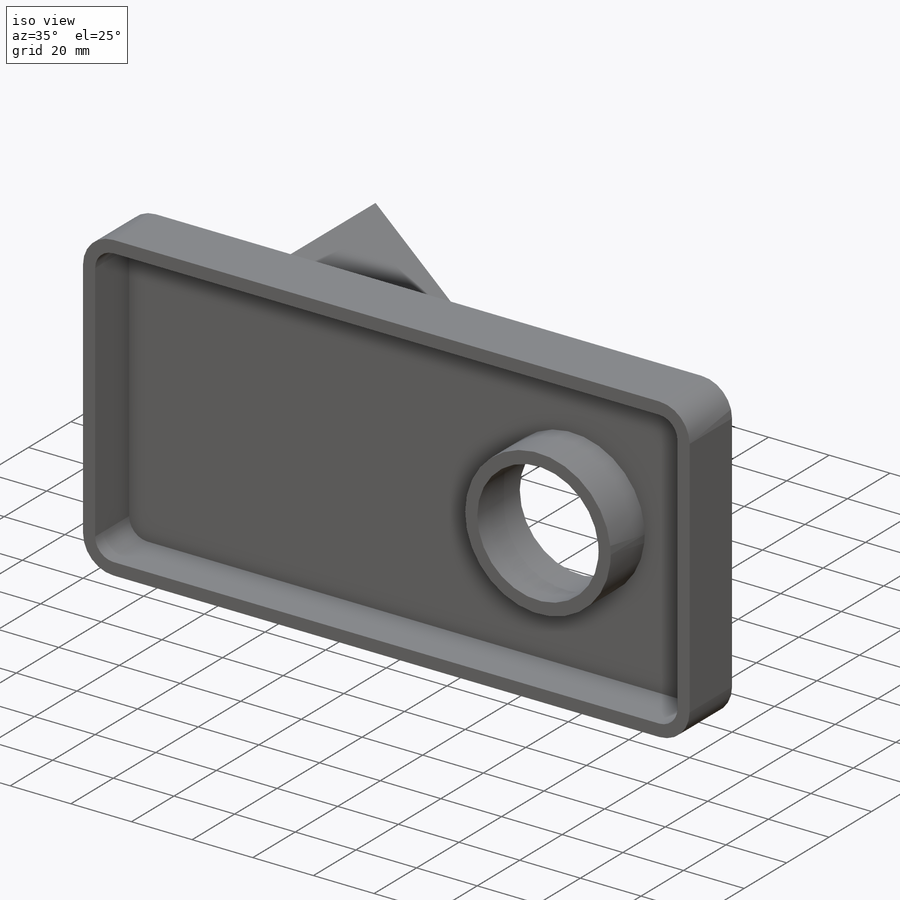
[diagram: iso view]
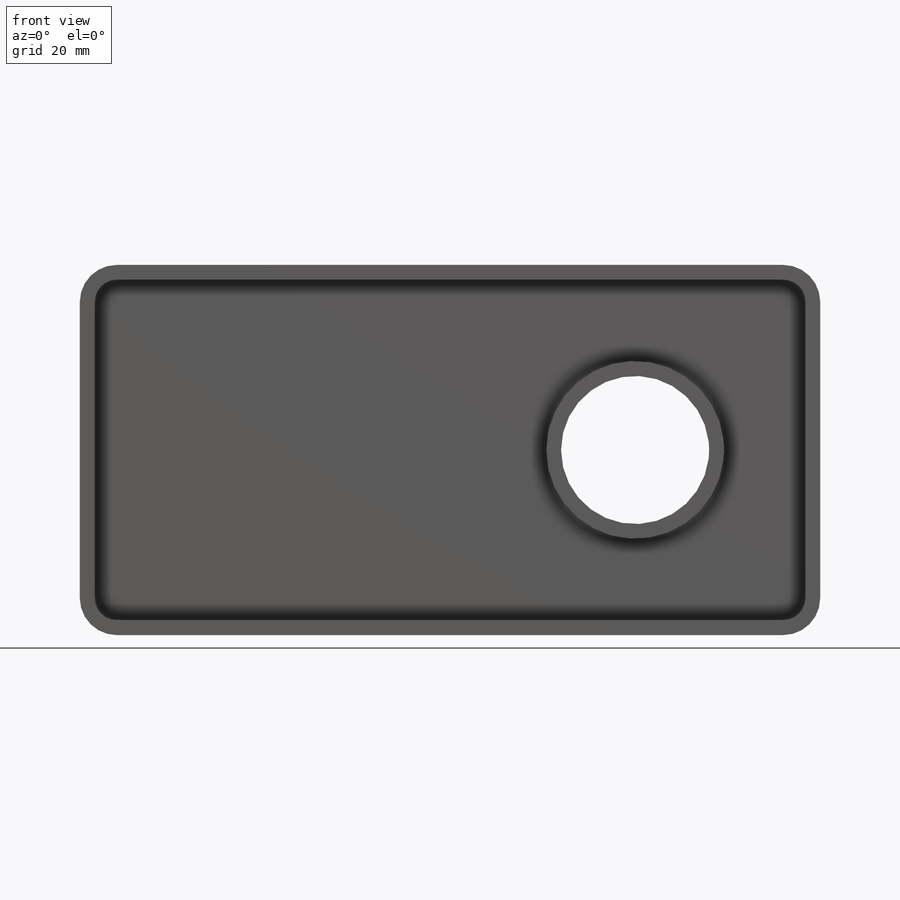
[diagram: front view]
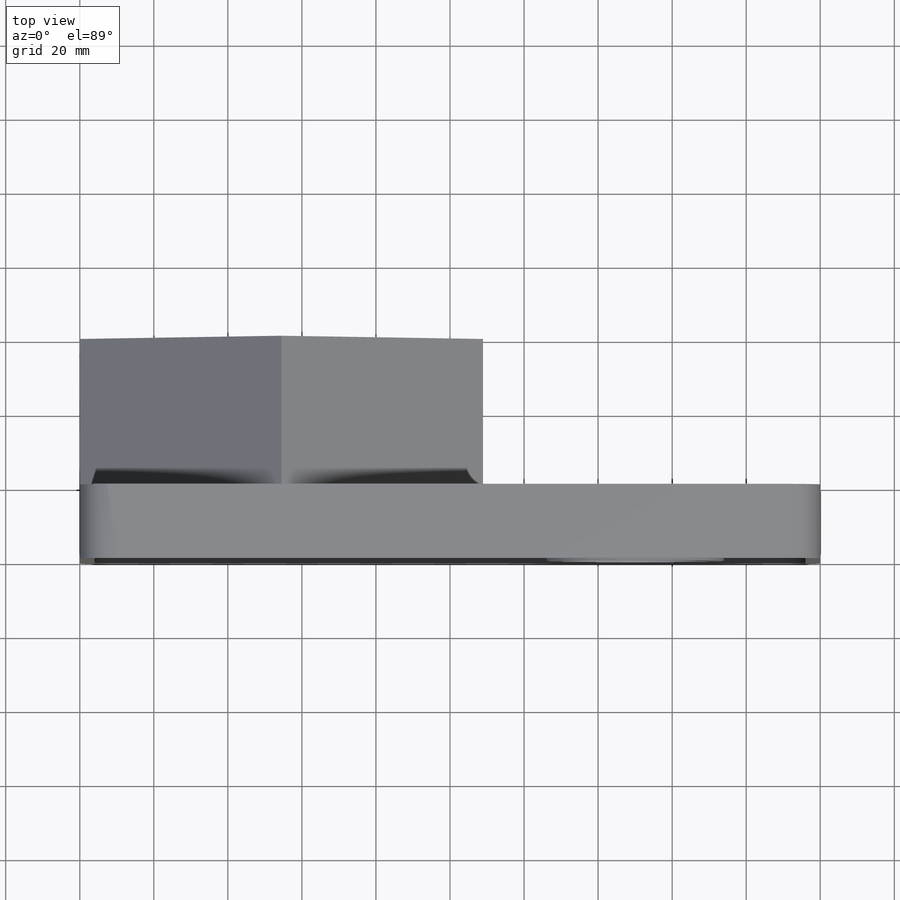
[diagram: top view]
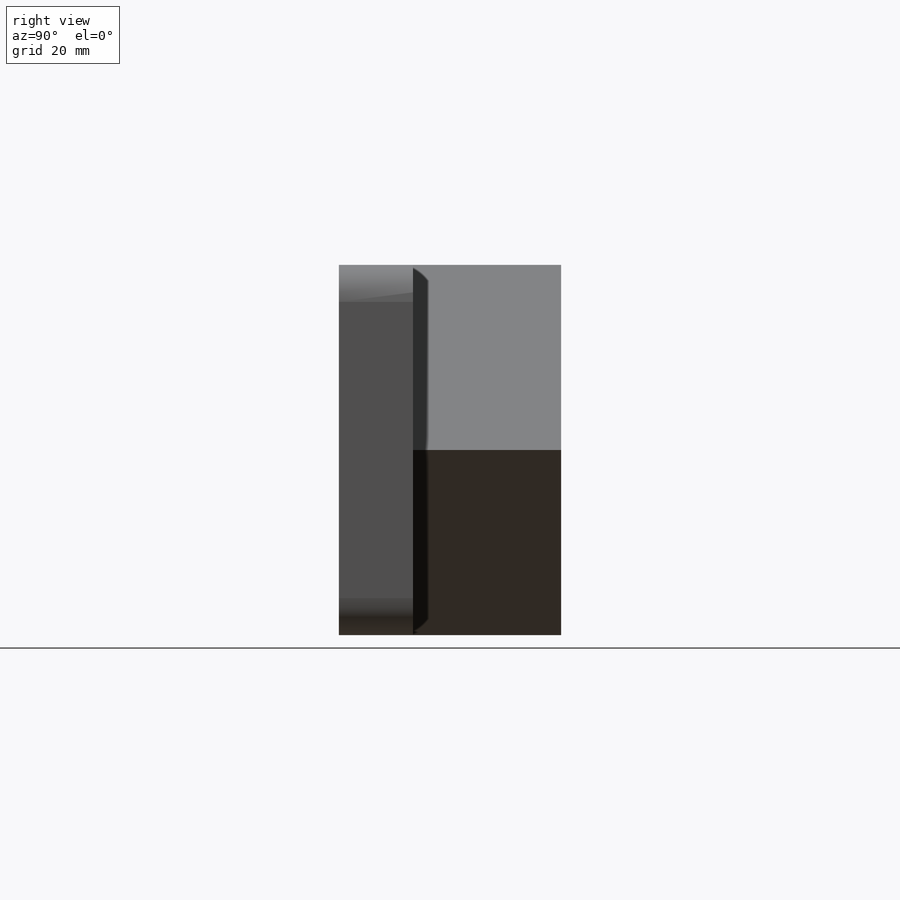
[diagram: right view]
SOLIDWORKS PART (.sldprt)
format: sldprt  version: not decoded by parser v0  size: 191,488 bytes
history: native  units: mm
features: plane x3, extrude x2, material x1, sketch x1, fillet x1, shell x1 + 1 further entry (+9 scaffold rows collapsed)
feature tree (19):
  scaffold x9  (default folders/planes/origin — collapsed)
  material  "Měď"
  plane  "Přední rovina"
  plane  "Horní rovina"
  plane  "Pravá rovina"
  sketch  "Skica1"  dims[D4=40.0mm D1=200.0mm D2=100.0mm D3=50.0mm]
  extrude  "Přidat vysunutím1"  Depth=20mm
  fillet  "Zaoblit1"  Radius=10mm
  shell  "Skořepina1"  Thickness=4mm
  "Skica2"
  extrude  "Přidat vysunutím2"  Depth=40mm
decode coverage: 5 of 5 modeling features carry decoded parameters; 1 rows unclassified (native names shown)
note: suppression state not decoded; provenance and decode notes live in map.json
